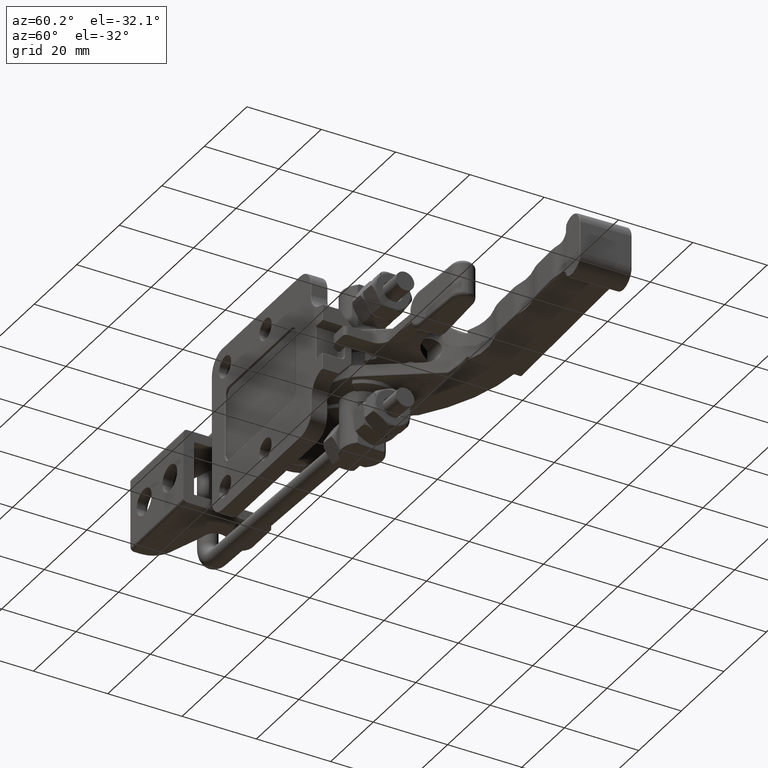
[diagram: clean part render]
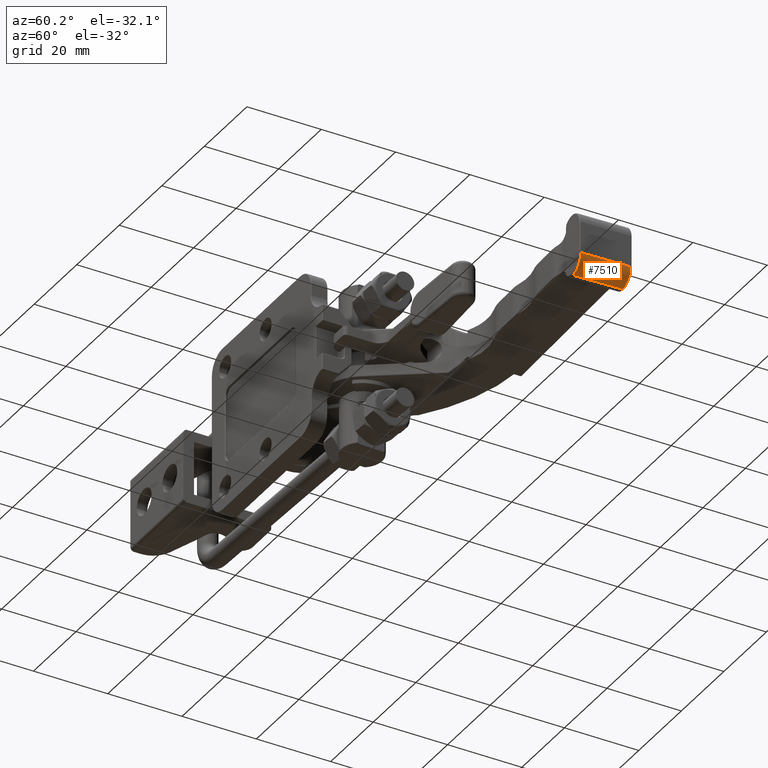
[diagram: same view with one face highlighted and labeled with its STEP entity id]
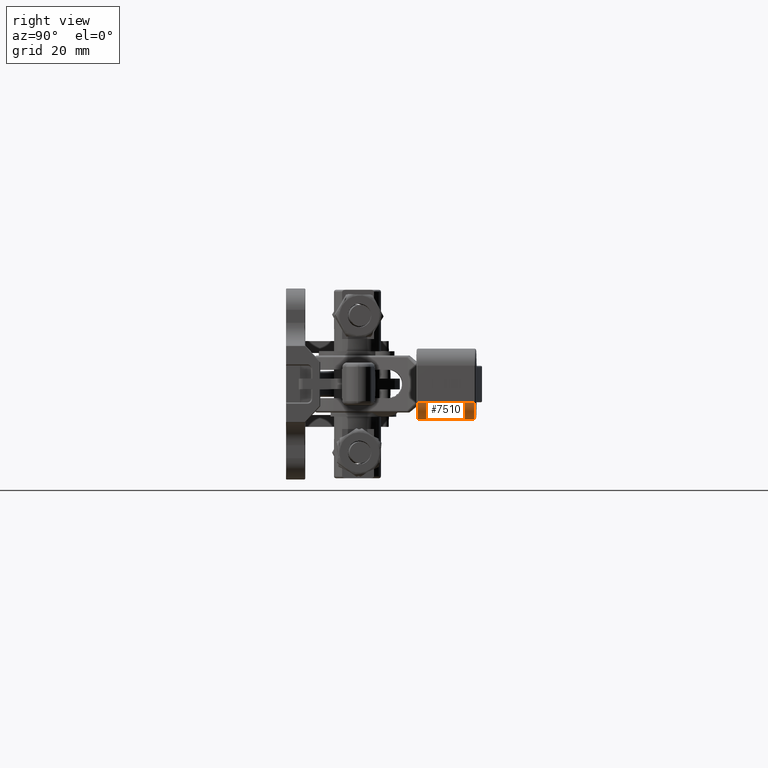
[diagram: same view with one face highlighted and labeled with its STEP entity id]
A machine part, auxiliary view. The second image highlights one B-rep face of the part: STEP entity #7510.
A second angle (right view) of the same face is appended — the face is thin or edge-on in the first view.
In plain terms, the highlighted cylindrical surface (edge-blend (fillet) strip) has radius 4 mm, axis along (-0.0279, -0.9996, -0).
Its self-contained STEP definition (entity closure, byte-faithful):
#1009=LINE('',#17348,#1424);
#1011=LINE('',#17359,#1426);
#1424=VECTOR('',#10322,13.2521859076732);
#1426=VECTOR('',#10338,13.2521859076755);
#1648=CYLINDRICAL_SURFACE('',#8359,4.);
#2024=FACE_OUTER_BOUND('',#2556,.T.);
#2556=EDGE_LOOP('',(#6461,#6462,#6463,#6464));
#3089=CIRCLE('',#8357,4.);
#3091=CIRCLE('',#8360,4.);
#3739=VERTEX_POINT('',#17343);
#3740=VERTEX_POINT('',#17347);
#3741=VERTEX_POINT('',#17353);
#3742=VERTEX_POINT('',#17357);
#4680=EDGE_CURVE('',#3740,#3739,#1009,.T.);
#4683=EDGE_CURVE('',#3741,#3740,#3089,.T.);
#4685=EDGE_CURVE('',#3739,#3742,#3091,.T.);
#4686=EDGE_CURVE('',#3741,#3742,#1011,.T.);
#6461=ORIENTED_EDGE('',*,*,#4685,.T.);
#6462=ORIENTED_EDGE('',*,*,#4686,.F.);
#6463=ORIENTED_EDGE('',*,*,#4683,.T.);
#6464=ORIENTED_EDGE('',*,*,#4680,.T.);
#7510=ADVANCED_FACE('',(#2024),#1648,.T.);
#8357=AXIS2_PLACEMENT_3D('',#17354,#10330,#10331);
#8359=AXIS2_PLACEMENT_3D('',#17356,#10334,#10335);
#8360=AXIS2_PLACEMENT_3D('',#17358,#10336,#10337);
#10322=DIRECTION('',(-0.033459756340951,-0.99944006558953,2.74117022043208E-14));
#10330=DIRECTION('center_axis',(-0.033459756340951,-0.99944006558953,0.));
#10331=DIRECTION('ref_axis',(0.,0.,-1.));
#10334=DIRECTION('center_axis',(-0.033459756340951,-0.99944006558953,0.));
#10335=DIRECTION('ref_axis',(0.,0.,-1.));
#10336=DIRECTION('center_axis',(0.033459756340951,0.99944006558953,0.));
#10337=DIRECTION('ref_axis',(0.99944006558953,-0.033459756340951,0.));
#10338=DIRECTION('',(-0.033459756340921,-0.999440065589531,0.));
#17343=CARTESIAN_POINT('',(106.94876118687,13.1463748851988,-4.2499999991699));
#17347=CARTESIAN_POINT('',(107.392176098309,26.3911404379689,-4.24999999917007));
#17348=CARTESIAN_POINT('',(107.3921760983,26.39114043797,-4.249999998103));
#17353=CARTESIAN_POINT('',(103.394415834819,26.5249794633698,-8.25));
#17354=CARTESIAN_POINT('Origin',(103.394415836,26.52497946333,-4.25));
#17356=CARTESIAN_POINT('Origin',(105.1624530201,79.33609922396,-4.25));
#17357=CARTESIAN_POINT('',(102.951000923338,13.2802139105987,-8.25));
#17358=CARTESIAN_POINT('Origin',(102.9510009245,13.28021391056,-4.25));
#17359=CARTESIAN_POINT('',(103.3944158339,26.5249794634,-8.25));